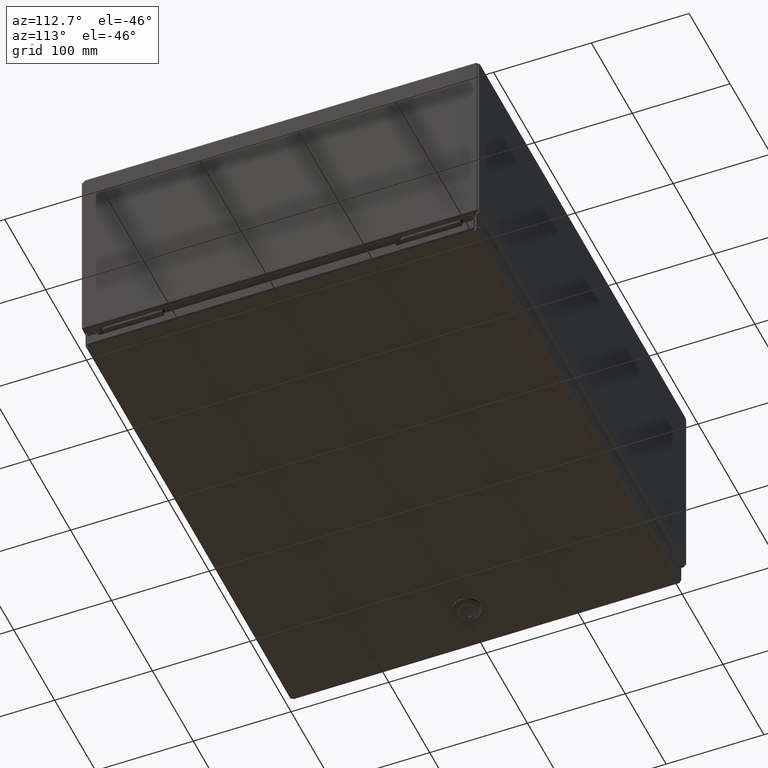
[diagram: clean part render]
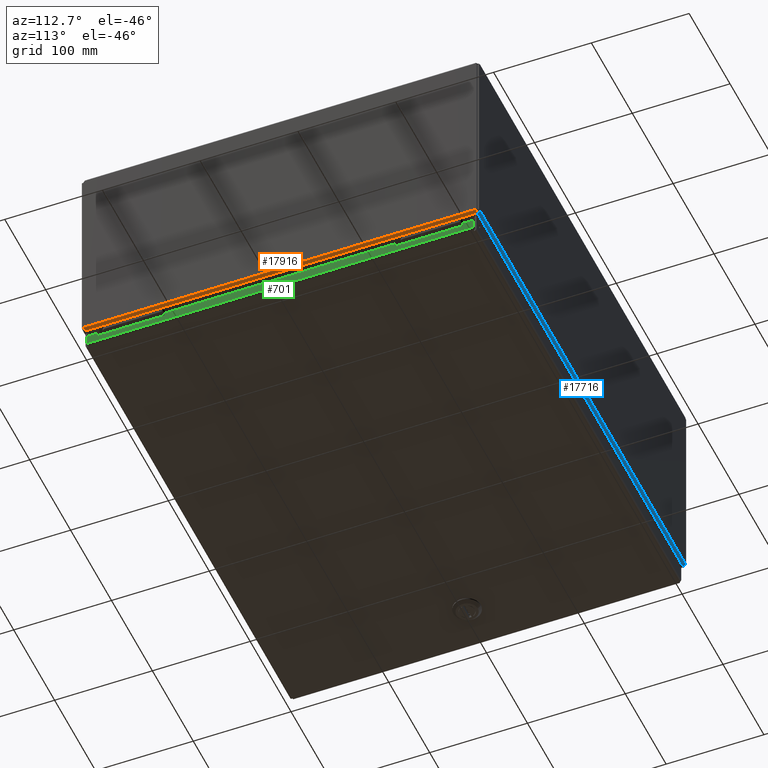
[diagram: same view with three faces highlighted in distinct colors, each labeled with its STEP entity id]
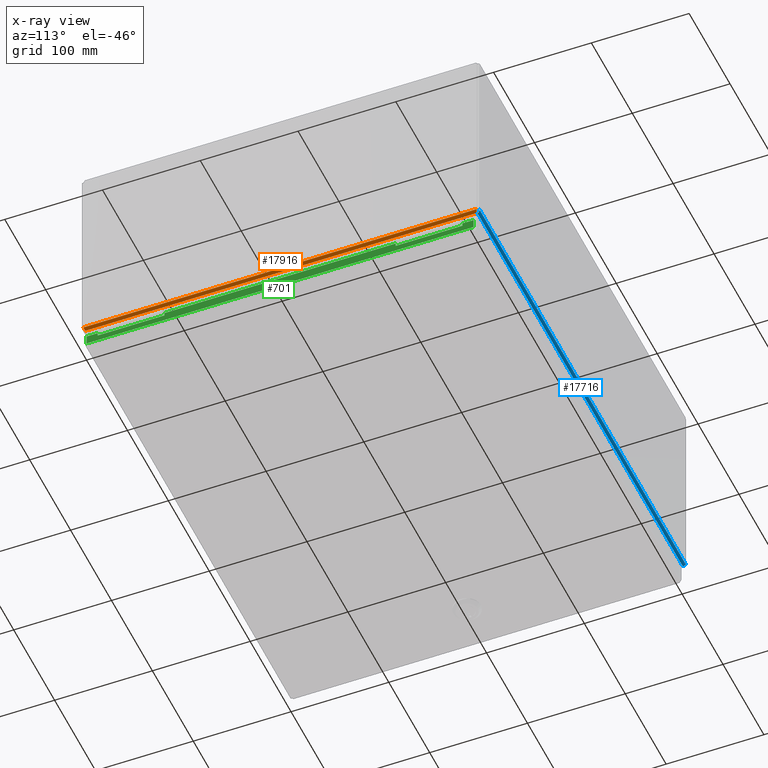
[diagram: x-ray of the same camera — body ghosted, the three highlighted faces saturated]
A machine part, auxiliary view with three faces highlighted in distinct colors.
The next image is the same camera in x-ray (body ghosted, the three faces saturated) — at least one of them is partly hidden behind the body in this view.
Their STEP definitions:

[orange] entity #17916 — the highlighted cylindrical surface (edge-blend (fillet) strip) has radius 2.6734 mm, axis along (-0, 1, 0).
#17378=CARTESIAN_POINT('',(0.105249999999998,0.116298543456038,7.999999999999997));
#17379=VERTEX_POINT('',#17378);
#17778=CARTESIAN_POINT('',(0.105249999999996,15.883701456544008,7.999999999999997));
#17779=VERTEX_POINT('',#17778);
#17786=CARTESIAN_POINT('',(0.105249999999993,15.883701456544006,7.999999999999997));
#17787=DIRECTION('',(0.0,-1.0,0.0));
#17788=VECTOR('',#17787,15.767402913087970);
#17789=LINE('',#17786,#17788);
#17790=EDGE_CURVE('',#17779,#17379,#17789,.T.);
#17862=CARTESIAN_POINT('',(-1.486125E-015,0.085048543456038,7.894749999999998));
#17863=VERTEX_POINT('',#17862);
#17864=CARTESIAN_POINT('',(0.105249999999997,0.116298543456037,7.999999999999997));
#17865=CARTESIAN_POINT('',(0.073759273639014,0.106948565320353,7.999999999999997));
#17866=CARTESIAN_POINT('',(0.042601986403737,0.097697589300378,7.984902388052186));
#17867=CARTESIAN_POINT('',(0.022968366657261,0.091868129755700,7.960403857439256));
#17868=CARTESIAN_POINT('',(0.008243151847404,0.087496035097191,7.942029959479559));
#17869=CARTESIAN_POINT('',(-1.687510E-015,0.085048543456038,7.918368044770736));
#17870=CARTESIAN_POINT('',(-1.606327E-015,0.085048543456038,7.894749999999998));
#17871=B_SPLINE_CURVE_WITH_KNOTS('',3,(#17864,#17865,#17866,#17867,#17868,#17869,#17870),.UNSPECIFIED.,.F.,.U.,(4,3,4),(-1.570796326794897,-0.673198425769238,5.450431E-015),.UNSPECIFIED.);
#17872=EDGE_CURVE('',#17379,#17863,#17871,.T.);
#17886=CARTESIAN_POINT('',(0.105249999999993,15.883701456544008,7.894749999999998));
#17887=DIRECTION('',(-3.061617E-016,1.0,-4.125523E-017));
#17888=DIRECTION('',(0.0,0.0,1.0));
#17889=AXIS2_PLACEMENT_3D('',#17886,#17887,#17888);
#17890=CYLINDRICAL_SURFACE('',#17889,0.105250000000000);
#17891=ORIENTED_EDGE('',*,*,#17790,.F.);
#17892=CARTESIAN_POINT('',(-6.742201E-015,15.914951456544006,7.894749999999998));
#17893=VERTEX_POINT('',#17892);
#17894=CARTESIAN_POINT('',(-6.437600E-015,15.914951456544006,7.894750000000001));
#17895=CARTESIAN_POINT('',(-6.086557E-015,15.914951456544006,7.910495363180490));
#17896=CARTESIAN_POINT('',(0.003598665776772,15.913882969080593,7.926216812092983));
#17897=CARTESIAN_POINT('',(0.010429578809272,15.911854788251462,7.940398942602277));
#17898=CARTESIAN_POINT('',(0.017260491841773,15.909826607422334,7.954581073111572));
#17899=CARTESIAN_POINT('',(0.027323652129998,15.906838733227497,7.967223885217665));
#17900=CARTESIAN_POINT('',(0.039635718329640,15.903183131624278,7.977019475941032));
#17901=CARTESIAN_POINT('',(0.058103817629102,15.897699729219452,7.991712862026082));
#17902=CARTESIAN_POINT('',(0.081631955229254,15.890713940145769,7.999999999999997));
#17903=CARTESIAN_POINT('',(0.105249999999992,15.883701456544008,7.999999999999997));
#17904=B_SPLINE_CURVE_WITH_KNOTS('',3,(#17894,#17895,#17896,#17897,#17898,#17899,#17900,#17901,#17902,#17903),.UNSPECIFIED.,.F.,.U.,(4,3,3,4),(2.008378E-014,0.448798950512807,0.897597901025647,1.570796326794897),.UNSPECIFIED.);
#17905=EDGE_CURVE('',#17893,#17779,#17904,.T.);
#17906=ORIENTED_EDGE('',*,*,#17905,.F.);
#17907=CARTESIAN_POINT('',(-3.681535E-016,0.085048543456037,7.894749999999999));
#17908=DIRECTION('',(0.0,1.0,0.0));
#17909=VECTOR('',#17908,15.829902913087970);
#17910=LINE('',#17907,#17909);
#17911=EDGE_CURVE('',#17863,#17893,#17910,.T.);
#17912=ORIENTED_EDGE('',*,*,#17911,.F.);
#17913=ORIENTED_EDGE('',*,*,#17872,.F.);
#17914=EDGE_LOOP('',(#17891,#17906,#17912,#17913));
#17915=FACE_OUTER_BOUND('',#17914,.T.);
#17916=ADVANCED_FACE('',(#17915),#17890,.T.);

[blue] entity #17716 — the highlighted cylindrical surface (edge-blend (fillet) strip) has radius 2.6734 mm, axis along (-1, -0, 0).
#17311=CARTESIAN_POINT('',(0.116298543456034,15.894750000000045,8.000000000000002));
#17312=VERTEX_POINT('',#17311);
#17590=CARTESIAN_POINT('',(19.883701456544447,15.894750000000045,7.999999999999999));
#17591=VERTEX_POINT('',#17590);
#17598=CARTESIAN_POINT('',(19.883701456544451,15.894750000000045,8.000000000000002));
#17599=DIRECTION('',(-1.0,0.0,0.0));
#17600=VECTOR('',#17599,19.767402913088418);
#17601=LINE('',#17598,#17600);
#17602=EDGE_CURVE('',#17591,#17312,#17601,.T.);
#17662=CARTESIAN_POINT('',(0.085048543456035,16.000000000000046,7.894750000000001));
#17663=VERTEX_POINT('',#17662);
#17664=CARTESIAN_POINT('',(0.116298543456034,15.894750000000045,7.999999999999996));
#17665=CARTESIAN_POINT('',(0.106948565320351,15.926240726361026,7.999999999999996));
#17666=CARTESIAN_POINT('',(0.097699458036396,15.957391719693385,7.984894029753026));
#17667=CARTESIAN_POINT('',(0.091869731529430,15.977026238568849,7.960396693182836));
#17668=CARTESIAN_POINT('',(0.087497436649204,15.991752127725443,7.942023690755192));
#17669=CARTESIAN_POINT('',(0.085048543456035,16.000000000000039,7.918368044770738));
#17670=CARTESIAN_POINT('',(0.085048543456035,16.000000000000039,7.894750000000001));
#17671=B_SPLINE_CURVE_WITH_KNOTS('',3,(#17664,#17665,#17666,#17667,#17668,#17669,#17670),.UNSPECIFIED.,.F.,.U.,(4,3,4),(-1.570796326794897,-0.673198425769241,9.153622E-031),.UNSPECIFIED.);
#17672=EDGE_CURVE('',#17312,#17663,#17671,.T.);
#17686=CARTESIAN_POINT('',(19.883701456544447,15.894750000000045,7.894750000000001));
#17687=DIRECTION('',(1.0,2.320148E-018,-1.218940E-032));
#17688=DIRECTION('',(0.0,0.0,1.0));
#17689=AXIS2_PLACEMENT_3D('',#17686,#17687,#17688);
#17690=CYLINDRICAL_SURFACE('',#17689,0.105250000000001);
#17691=ORIENTED_EDGE('',*,*,#17602,.F.);
#17692=CARTESIAN_POINT('',(19.914951456544447,16.000000000000043,7.894750000000001));
#17693=VERTEX_POINT('',#17692);
#17694=CARTESIAN_POINT('',(19.914951456544447,16.000000000000039,7.894750000000001));
#17695=CARTESIAN_POINT('',(19.914951456544447,16.000000000000039,7.910495363180492));
#17696=CARTESIAN_POINT('',(19.913882913119799,15.996401145745835,7.926216503160632));
#17697=CARTESIAN_POINT('',(19.911854697991750,15.989570117194562,7.940398406869023));
#17698=CARTESIAN_POINT('',(19.909826482863700,15.982739088643291,7.954580310577414));
#17699=CARTESIAN_POINT('',(19.906838596032241,15.972675885794953,7.967222978014054));
#17700=CARTESIAN_POINT('',(19.903183011831153,15.960363878205685,7.977018661808995));
#17701=CARTESIAN_POINT('',(19.897699635529520,15.941895866821781,7.991712187501408));
#17702=CARTESIAN_POINT('',(19.890713940146210,15.918368044770782,7.999999999999996));
#17703=CARTESIAN_POINT('',(19.883701456544447,15.894750000000045,7.999999999999996));
#17704=B_SPLINE_CURVE_WITH_KNOTS('',3,(#17694,#17695,#17696,#17697,#17698,#17699,#17700,#17701,#17702,#17703),.UNSPECIFIED.,.F.,.U.,(4,3,3,4),(-2.196447E-031,0.448798950512828,0.897597901025655,1.570796326794897),.UNSPECIFIED.);
#17705=EDGE_CURVE('',#17693,#17591,#17704,.T.);
#17706=ORIENTED_EDGE('',*,*,#17705,.F.);
#17707=CARTESIAN_POINT('',(0.085048543456034,16.000000000000043,7.894750000000001));
#17708=DIRECTION('',(1.0,0.0,0.0));
#17709=VECTOR('',#17708,19.829902913088411);
#17710=LINE('',#17707,#17709);
#17711=EDGE_CURVE('',#17663,#17693,#17710,.T.);
#17712=ORIENTED_EDGE('',*,*,#17711,.F.);
#17713=ORIENTED_EDGE('',*,*,#17672,.F.);
#17714=EDGE_LOOP('',(#17691,#17706,#17712,#17713));
#17715=FACE_OUTER_BOUND('',#17714,.T.);
#17716=ADVANCED_FACE('',(#17715),#17690,.T.);

[green] entity #701 — the highlighted planar face has unit normal (-1, 0, 0).
#390=CARTESIAN_POINT('',(19.875000000000004,0.085048543456041,0.480000000000004));
#391=VERTEX_POINT('',#390);
#398=CARTESIAN_POINT('',(19.875000000000004,0.532000000000001,0.479999999999998));
#399=VERTEX_POINT('',#398);
#400=CARTESIAN_POINT('',(19.875000000000004,0.532000000000001,0.479999999999998));
#401=DIRECTION('',(0.0,-1.0,0.0));
#402=VECTOR('',#401,0.446951456543960);
#403=LINE('',#400,#402);
#404=EDGE_CURVE('',#399,#391,#403,.T.);
#429=CARTESIAN_POINT('',(19.875000000000004,0.532000000000001,0.354999999999998));
#430=VERTEX_POINT('',#429);
#431=CARTESIAN_POINT('',(19.875000000000004,0.532000000000001,0.354999999999998));
#432=DIRECTION('',(0.0,0.0,1.0));
#433=VECTOR('',#432,0.125000000000000);
#434=LINE('',#431,#433);
#435=EDGE_CURVE('',#430,#399,#434,.T.);
#460=CARTESIAN_POINT('',(19.875000000000004,3.219000000000001,0.354999999999998));
#461=VERTEX_POINT('',#460);
#462=CARTESIAN_POINT('',(19.875000000000004,3.219000000000001,0.354999999999998));
#463=DIRECTION('',(0.0,-1.0,0.0));
#464=VECTOR('',#463,2.687000000000000);
#465=LINE('',#462,#464);
#466=EDGE_CURVE('',#461,#430,#465,.T.);
#491=CARTESIAN_POINT('',(19.875000000000004,3.219000000000001,0.479999999999998));
#492=VERTEX_POINT('',#491);
#493=CARTESIAN_POINT('',(19.875000000000004,3.219000000000001,0.479999999999998));
#494=DIRECTION('',(0.0,0.0,-1.0));
#495=VECTOR('',#494,0.125000000000000);
#496=LINE('',#493,#495);
#497=EDGE_CURVE('',#492,#461,#496,.T.);
#522=CARTESIAN_POINT('',(19.874999999999996,12.530999999999977,0.480000000000000));
#523=VERTEX_POINT('',#522);
#524=CARTESIAN_POINT('',(19.875000000000000,12.530999999999977,0.480000000000000));
#525=DIRECTION('',(0.0,-1.0,0.0));
#526=VECTOR('',#525,9.311999999999976);
#527=LINE('',#524,#526);
#528=EDGE_CURVE('',#523,#492,#527,.T.);
#553=CARTESIAN_POINT('',(19.874999999999996,12.530999999999977,0.354999999999999));
#554=VERTEX_POINT('',#553);
#555=CARTESIAN_POINT('',(19.874999999999996,12.530999999999977,0.354999999999999));
#556=DIRECTION('',(0.0,0.0,1.0));
#557=VECTOR('',#556,0.125000000000001);
#558=LINE('',#555,#557);
#559=EDGE_CURVE('',#554,#523,#558,.T.);
#584=CARTESIAN_POINT('',(19.874999999999996,15.217999999999979,0.354999999999999));
#585=VERTEX_POINT('',#584);
#586=CARTESIAN_POINT('',(19.874999999999996,15.217999999999979,0.354999999999999));
#587=DIRECTION('',(0.0,-1.0,0.0));
#588=VECTOR('',#587,2.687000000000001);
#589=LINE('',#586,#588);
#590=EDGE_CURVE('',#585,#554,#589,.T.);
#615=CARTESIAN_POINT('',(19.874999999999996,15.217999999999979,0.480000000000000));
#616=VERTEX_POINT('',#615);
#617=CARTESIAN_POINT('',(19.874999999999996,15.217999999999979,0.479999999999999));
#618=DIRECTION('',(0.0,0.0,-1.0));
#619=VECTOR('',#618,0.125000000000001);
#620=LINE('',#617,#619);
#621=EDGE_CURVE('',#616,#585,#620,.T.);
#646=CARTESIAN_POINT('',(19.874999999999996,15.664951456543966,0.480000000000000));
#647=VERTEX_POINT('',#646);
#648=CARTESIAN_POINT('',(19.874999999999996,15.664951456543967,0.480000000000000));
#649=DIRECTION('',(0.0,-1.0,0.0));
#650=VECTOR('',#649,0.446951456543989);
#651=LINE('',#648,#650);
#652=EDGE_CURVE('',#647,#616,#651,.T.);
#663=CARTESIAN_POINT('',(19.875000000000000,7.874999999999999,0.366759562247301));
#664=DIRECTION('',(-1.0,0.0,0.0));
#665=DIRECTION('',(0.0,0.0,1.0));
#666=AXIS2_PLACEMENT_3D('',#663,#664,#665);
#667=PLANE('',#666);
#668=ORIENTED_EDGE('',*,*,#652,.T.);
#669=ORIENTED_EDGE('',*,*,#621,.T.);
#670=ORIENTED_EDGE('',*,*,#590,.T.);
#671=ORIENTED_EDGE('',*,*,#559,.T.);
#672=ORIENTED_EDGE('',*,*,#528,.T.);
#673=ORIENTED_EDGE('',*,*,#497,.T.);
#674=ORIENTED_EDGE('',*,*,#466,.T.);
#675=ORIENTED_EDGE('',*,*,#435,.T.);
#676=ORIENTED_EDGE('',*,*,#404,.T.);
#677=CARTESIAN_POINT('',(19.875000000000004,0.085048543456040,0.105250000000001));
#678=VERTEX_POINT('',#677);
#679=CARTESIAN_POINT('',(19.875000000000004,0.085048543456040,0.105250000000004));
#680=DIRECTION('',(0.0,0.0,1.0));
#681=VECTOR('',#680,0.374750000000000);
#682=LINE('',#679,#681);
#683=EDGE_CURVE('',#678,#391,#682,.T.);
#684=ORIENTED_EDGE('',*,*,#683,.F.);
#685=CARTESIAN_POINT('',(19.874999999999993,15.664951456543966,0.105249999999996));
#686=VERTEX_POINT('',#685);
#687=CARTESIAN_POINT('',(19.875000000000004,0.085048543456039,0.105249999999998));
#688=DIRECTION('',(0.0,1.0,0.0));
#689=VECTOR('',#688,15.579902913087928);
#690=LINE('',#687,#689);
#691=EDGE_CURVE('',#678,#686,#690,.T.);
#692=ORIENTED_EDGE('',*,*,#691,.T.);
#693=CARTESIAN_POINT('',(19.874999999999996,15.664951456543966,0.480000000000000));
#694=DIRECTION('',(0.0,0.0,-1.0));
#695=VECTOR('',#694,0.374750000000004);
#696=LINE('',#693,#695);
#697=EDGE_CURVE('',#647,#686,#696,.T.);
#698=ORIENTED_EDGE('',*,*,#697,.F.);
#699=EDGE_LOOP('',(#668,#669,#670,#671,#672,#673,#674,#675,#676,#684,#692,#698));
#700=FACE_OUTER_BOUND('',#699,.T.);
#701=ADVANCED_FACE('',(#700),#667,.F.);